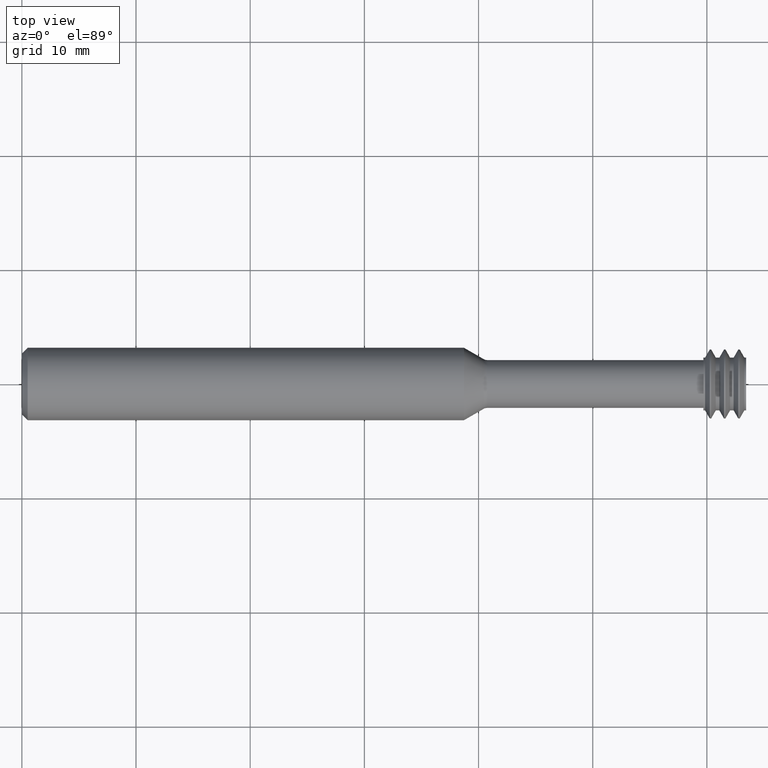
[diagram: clean part render]
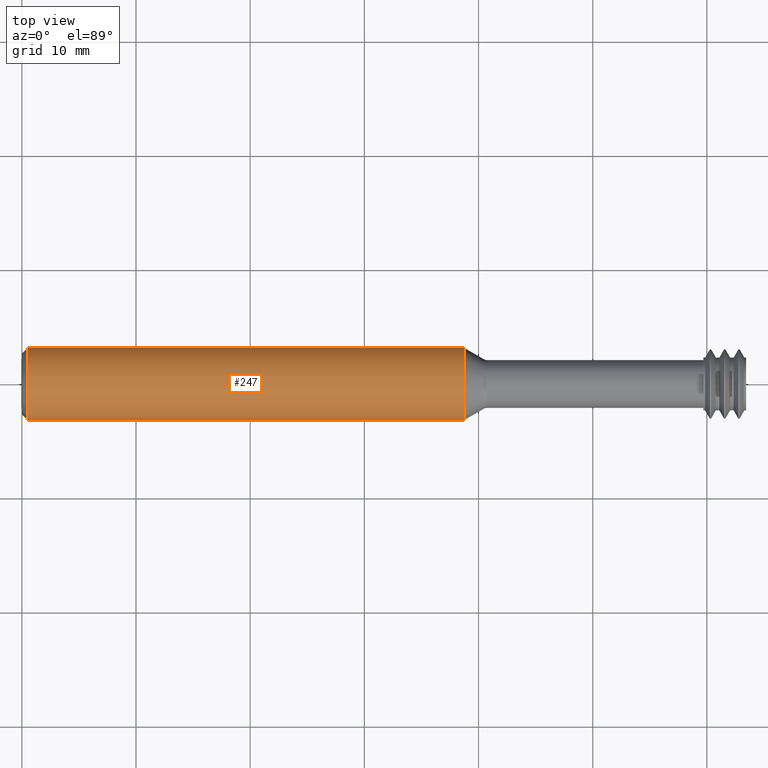
[diagram: same view with one face highlighted and labeled with its STEP entity id]
A machine part, top view. The second image highlights one B-rep face of the part: STEP entity #247.
In plain terms, the highlighted cylindrical surface (edge-blend (fillet) strip) has radius 3.1712 mm, axis along (-1, 0, -0).
Its self-contained STEP definition (entity closure, byte-faithful):
#8 = DIRECTION ( 'NONE',  ( 0.0000000000000000000, -1.000000000000000000, 0.0000000000000000000 ) ) ;
#11 = DIRECTION ( 'NONE',  ( -1.000000000000000000, 2.239313081137374464E-19, -0.0000000000000000000 ) ) ;
#43 = AXIS2_PLACEMENT_3D ( 'NONE', #81, #11, #8 ) ;
#81 = CARTESIAN_POINT ( 'NONE',  ( 1.524647648299458425, -5.410124726613057189E-19, 0.0000000000000000000 ) ) ;
#122 = LINE ( 'NONE', #778, #691 ) ;
#130 = EDGE_CURVE ( 'NONE', #293, #227, #122, .T. ) ;
#169 = CARTESIAN_POINT ( 'NONE',  ( 0.02000000000000005940, -2.040747565273492847E-19, 0.0000000000000000000 ) ) ;
#174 = ORIENTED_EDGE ( 'NONE', *, *, #977, .F. ) ;
#227 = VERTEX_POINT ( 'NONE', #424 ) ;
#247 = ADVANCED_FACE ( 'NONE', ( #914 ), #251, .T. ) ;
#251 = CYLINDRICAL_SURFACE ( 'NONE', #585, 0.1248500000000000026 ) ;
#293 = VERTEX_POINT ( 'NONE', #546 ) ;
#317 = VECTOR ( 'NONE', #712, 39.37007874015748143 ) ;
#424 = CARTESIAN_POINT ( 'NONE',  ( 0.02000000000000005940, 0.1248500000000000026, 0.0000000000000000000 ) ) ;
#426 = VERTEX_POINT ( 'NONE', #540 ) ;
#432 = DIRECTION ( 'NONE',  ( 0.0000000000000000000, -1.000000000000000000, 0.0000000000000000000 ) ) ;
#465 = CARTESIAN_POINT ( 'NONE',  ( 2.350000000000000089, -7.258347044323575049E-19, 0.0000000000000000000 ) ) ;
#506 = DIRECTION ( 'NONE',  ( 0.0000000000000000000, -1.000000000000000000, 0.0000000000000000000 ) ) ;
#540 = CARTESIAN_POINT ( 'NONE',  ( 1.524647648299458425, -0.1248500000000000026, 0.0000000000000000000 ) ) ;
#541 = CIRCLE ( 'NONE', #877, 0.1248500000000000026 ) ;
#546 = CARTESIAN_POINT ( 'NONE',  ( 1.524647648299458425, 0.1248500000000000026, 1.528971528735470422E-17 ) ) ;
#561 = ORIENTED_EDGE ( 'NONE', *, *, #130, .T. ) ;
#568 = CIRCLE ( 'NONE', #43, 0.1248500000000000026 ) ;
#585 = AXIS2_PLACEMENT_3D ( 'NONE', #465, #1016, #432 ) ;
#593 = DIRECTION ( 'NONE',  ( -1.000000000000000000, 2.239313081137374464E-19, -0.0000000000000000000 ) ) ;
#594 = ORIENTED_EDGE ( 'NONE', *, *, #790, .T. ) ;
#682 = EDGE_LOOP ( 'NONE', ( #594, #561, #174, #759 ) ) ;
#685 = VERTEX_POINT ( 'NONE', #884 ) ;
#691 = VECTOR ( 'NONE', #947, 39.37007874015748143 ) ;
#712 = DIRECTION ( 'NONE',  ( -1.000000000000000000, 2.239313081137374464E-19, -0.0000000000000000000 ) ) ;
#724 = LINE ( 'NONE', #996, #317 ) ;
#759 = ORIENTED_EDGE ( 'NONE', *, *, #1026, .F. ) ;
#778 = CARTESIAN_POINT ( 'NONE',  ( 2.350000000000000089, 0.1248500000000000026, 1.528971528735470422E-17 ) ) ;
#790 = EDGE_CURVE ( 'NONE', #426, #293, #568, .T. ) ;
#877 = AXIS2_PLACEMENT_3D ( 'NONE', #169, #593, #506 ) ;
#884 = CARTESIAN_POINT ( 'NONE',  ( 0.02000000000000005940, -0.1248500000000000026, 1.528971528735470422E-17 ) ) ;
#914 = FACE_OUTER_BOUND ( 'NONE', #682, .T. ) ;
#947 = DIRECTION ( 'NONE',  ( -1.000000000000000000, 2.239313081137374464E-19, -0.0000000000000000000 ) ) ;
#977 = EDGE_CURVE ( 'NONE', #685, #227, #541, .T. ) ;
#996 = CARTESIAN_POINT ( 'NONE',  ( 2.350000000000000089, -0.1248500000000000026, 0.0000000000000000000 ) ) ;
#1016 = DIRECTION ( 'NONE',  ( -1.000000000000000000, 2.239313081137374464E-19, -0.0000000000000000000 ) ) ;
#1026 = EDGE_CURVE ( 'NONE', #426, #685, #724, .T. ) ;